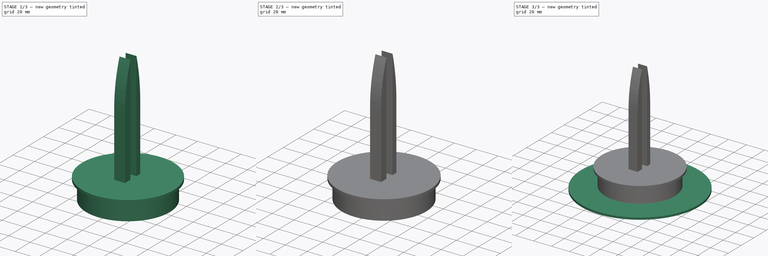
[diagram: build sequence overview — one tinted view per stage of 3, left to right]
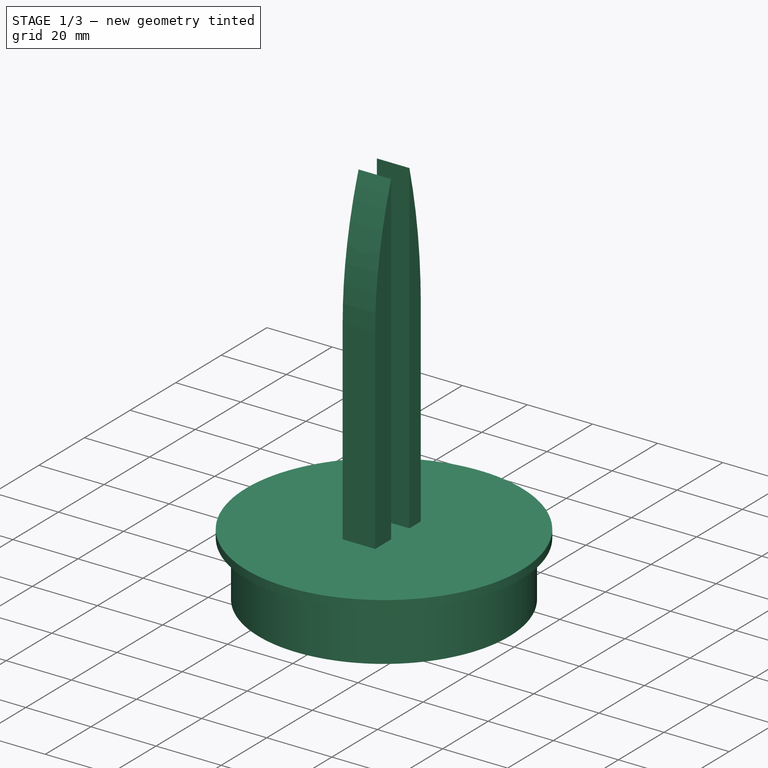
[diagram: stage 1 of 3 — iso view after this stage's code; geometry added in this stage tinted green]
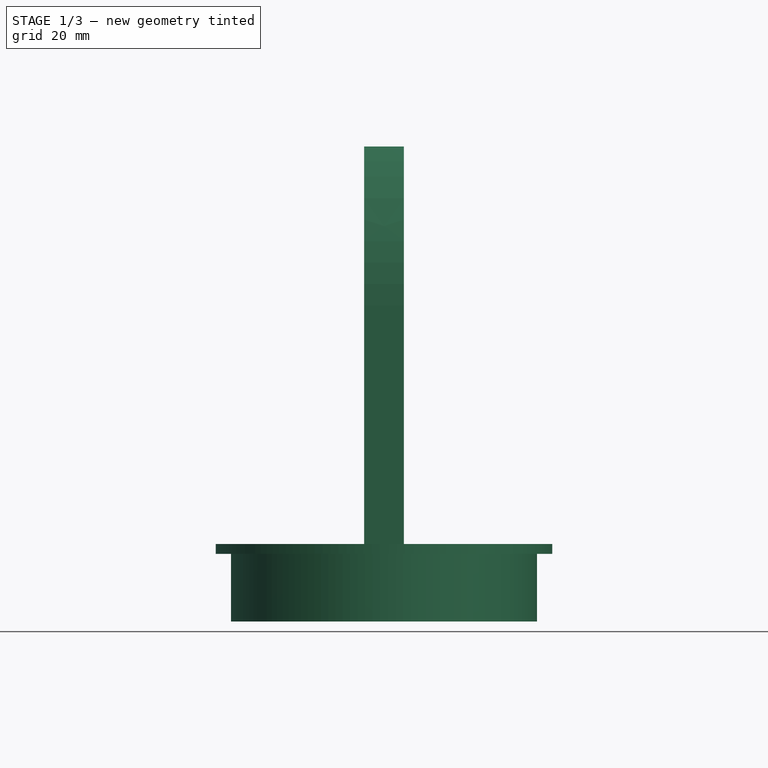
[diagram: stage 1 of 3 — front view after this stage's code; geometry added in this stage tinted green]
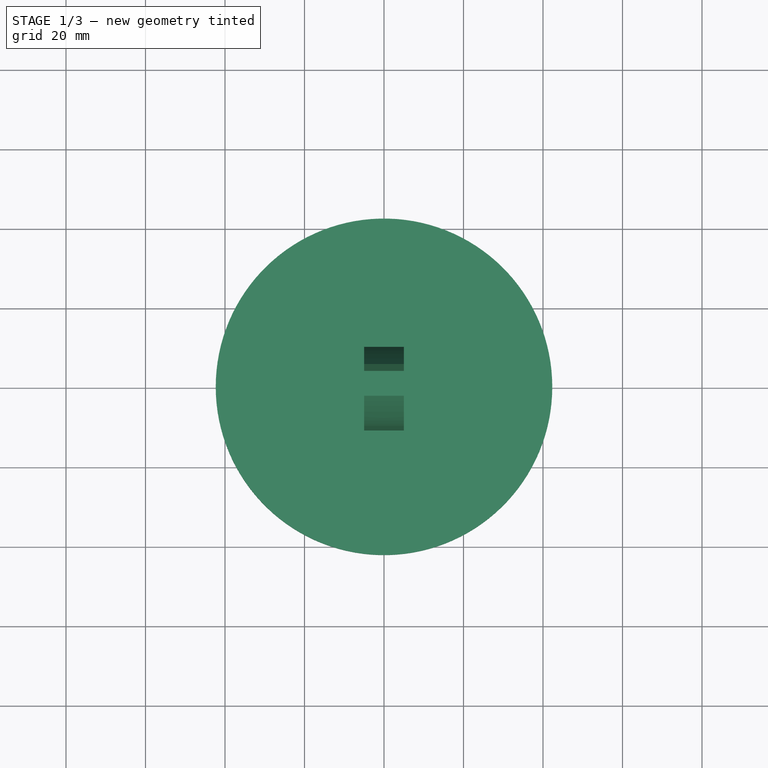
[diagram: stage 1 of 3 — top view after this stage's code; geometry added in this stage tinted green]
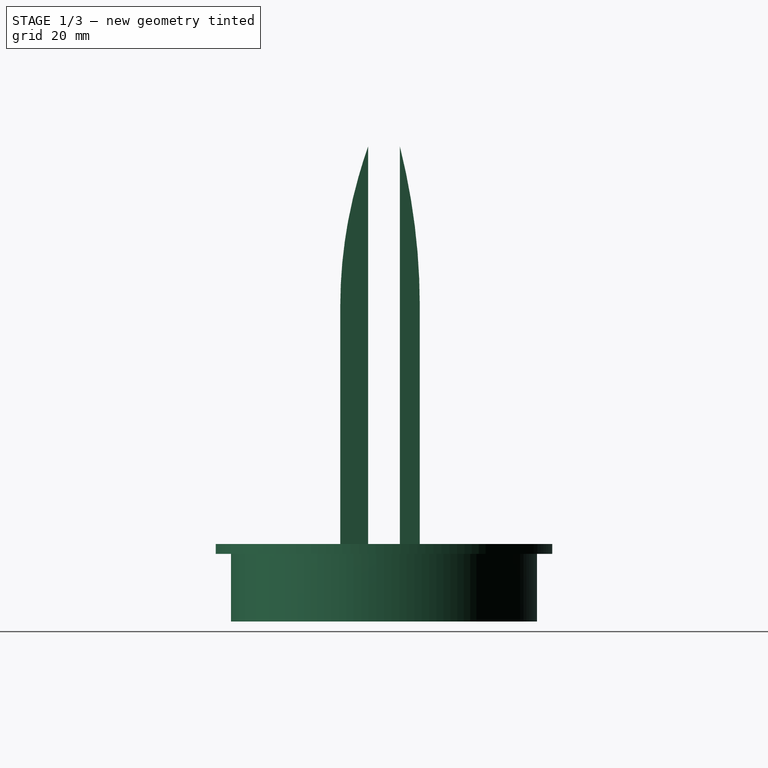
[diagram: stage 1 of 3 — right view after this stage's code; geometry added in this stage tinted green]
FCSTD DOCUMENT  (FreeCAD 1.1R20260414 (Git shallow))
Label: DЫ
License: All rights reserved
LicenseURL: https://en.wikipedia.org/wiki/All_rights_reserved
objects: Sketcher::SketchObject×5, PartDesign::Revolution×4, App::Point×3, PartDesign::Body×3, PartDesign::Chamfer×1, PartDesign::Pad×1
note: 31 computed .brp shape members not serialized (recipe doc carries the construction recipe); baked Part::Feature solids carry a one-line shape summary decoded from their .brp

FEATURE [PartDesign::Body] Body001  label="Подшипник"
  AllowCompound = false
  Group = -> [Sketch010,Revolution]
  Origin = -> Origin002
  Tip = -> Revolution
FEATURE [App::Point] Origin006  label="Origin001"
  Role = Origin
FEATURE [Sketcher::SketchObject] Sketch
  ArcFitTolerance = 1e-06
  AttachmentSupport = -> [Origin]
  ExternalTypes = [0]
  FullyConstrained = false
  MakeInternals = false
  MapMode = 5
  Placement = pos=(0,0,0) rot=(1,0,0;1.5708rad)
  _ExternalGeoVersion = 1
  sketch-geometry (8):
    g0: LineSegment StartX=36 StartY=17 StartZ=0 EndX=36 EndY=0 EndZ=0
    g1: LineSegment StartX=36 StartY=0 StartZ=0 EndX=38.5 EndY=0 EndZ=0
    g2: LineSegment StartX=38.5 StartY=0 StartZ=0 EndX=38.5 EndY=17 EndZ=0
    g3: LineSegment StartX=36 StartY=17 StartZ=0 EndX=0 EndY=17 EndZ=0
    g4: LineSegment StartX=0 StartY=17 StartZ=0 EndX=0 EndY=19.5 EndZ=0
    g5: LineSegment StartX=0 StartY=19.5 StartZ=0 EndX=42.3307 EndY=19.5 EndZ=0
    g6: LineSegment StartX=42.3307 StartY=19.5 StartZ=0 EndX=42.3307 EndY=17 EndZ=0
    g7: LineSegment StartX=42.3307 StartY=17 StartZ=0 EndX=38.5 EndY=17 EndZ=0
  constraints (23):
    c: Vertical(g0)
    c: Coincident(g0,g1)
    c: Coincident(g1,g2)
    c: Vertical(g2)
    c: Horizontal(g1)
    c: PointOnObject(g0,g-1)
    c: Distance(g-2,g0) = 36
    c: DistanceY(g2,g2) = 17
    c: DistanceX(g0,g2) = 2.5
    c: Coincident(g0,g3)
    c: Horizontal(g3)
    c: Coincident(g3,g4)
    c: Vertical(g4)
    c: Coincident(g4,g5)
    c: Horizontal(g5)
    c: Coincident(g5,g6)
    c: Vertical(g6)
    c: Coincident(g6,g7)
    c: Coincident(g7,g2)
    c: Horizontal(g7)
    c: DistanceY(g6,g6) = 2.5
    c: PointOnObject(g3,g-2)
    c: Horizontal(g2,g0)
FEATURE [PartDesign::Revolution] Revolution004
  Angle = 360
  Angle2 = 0
  Axis = (0,2e-16,1)
  Base = (0,0,0)
  FuseOrder = 0
  Profile = -> Sketch
  ReferenceAxis = -> Sketch [V_Axis]
  Refine = true
  Reversed = true
  Suppressed = false
  Type = 0
FEATURE [Sketcher::SketchObject] Sketch011
  ArcFitTolerance = 1e-06
  AttachmentSupport = -> [Origin]
  ExternalGeometry = -> [Revolution004]
  ExternalTypes = [0]
  FullyConstrained = false
  MakeInternals = false
  MapMode = 5
  Placement = pos=(0,0,0) rot=(0.57735,0.57735,0.57735;2.0944rad)
  _ExternalGeoVersion = 1
  sketch-geometry (24):
    g0: LineSegment StartX=-4 StartY=119.5 StartZ=0 EndX=-4 EndY=19.5 EndZ=0
    g1: LineSegment StartX=4 StartY=119.5 StartZ=0 EndX=4 EndY=19.5 EndZ=0
    g2: LineSegment StartX=-11 StartY=19.5 StartZ=0 EndX=-11 EndY=79.5 EndZ=0
    g3: LineSegment StartX=9 StartY=19.5 StartZ=0 EndX=9 EndY=79.5 EndZ=0
    g4: LineSegment StartX=-4 StartY=19.5 StartZ=0 EndX=-11 EndY=19.5 EndZ=0
    g5: LineSegment StartX=4 StartY=19.5 StartZ=0 EndX=9 EndY=19.5 EndZ=0
    g6: Circle [constr] CenterX=-11 CenterY=79.5 CenterZ=0 NormalX=0 NormalY=0 NormalZ=1 AngleXU=0 Radius=1
    g7: Circle [constr] CenterX=-11 CenterY=99.5 CenterZ=0 NormalX=0 NormalY=0 NormalZ=1 AngleXU=0 Radius=1
    g8: Circle [constr] CenterX=-4 CenterY=119.5 CenterZ=0 NormalX=0 NormalY=0 NormalZ=1 AngleXU=0 Radius=1
    g9: BSplineCurve PolesCount=3 KnotsCount=2 Degree=2 IsPeriodic=0
    g10: GeomPoint [constr] X=-11 Y=79.5 Z=0
    g11: GeomPoint [constr] X=-4 Y=119.5 Z=0
    g12: Circle [constr] CenterX=4 CenterY=119.5 CenterZ=0 NormalX=0 NormalY=0 NormalZ=1 AngleXU=0 Radius=1
    g13: Circle [constr] CenterX=9 CenterY=99.5 CenterZ=0 NormalX=0 NormalY=0 NormalZ=1 AngleXU=0 Radius=1
    g14: Circle [constr] CenterX=9 CenterY=79.5 CenterZ=0 NormalX=0 NormalY=0 NormalZ=1 AngleXU=0 Radius=1
    g15: BSplineCurve PolesCount=3 KnotsCount=2 Degree=2 IsPeriodic=0
    g16: GeomPoint [constr] X=4 Y=119.5 Z=0
    g17: GeomPoint [constr] X=9 Y=79.5 Z=0
    g18: LineSegment [constr] StartX=-4 StartY=119.5 StartZ=0 EndX=-11 EndY=119.5 EndZ=0
    g19: LineSegment [constr] StartX=-11 StartY=119.5 StartZ=0 EndX=-11 EndY=99.5 EndZ=0
    g20: LineSegment [constr] StartX=-11 StartY=99.5 StartZ=0 EndX=-11 EndY=79.5 EndZ=0
    g21: LineSegment [constr] StartX=9 StartY=79.5 StartZ=0 EndX=9 EndY=99.5 EndZ=0
    g22: LineSegment [constr] StartX=9 StartY=99.5 StartZ=0 EndX=9 EndY=119.5 EndZ=0
    g23: LineSegment [constr] StartX=9 StartY=119.5 StartZ=0 EndX=4 EndY=119.5 EndZ=0
  constraints (56):
    c: DistanceY(g1,g1) = 100
    c: PointOnObject(g1,g-3)
    c: Horizontal(g1,g0)
    c: Vertical(g2)
    c: PointOnObject(g3,g-3)
    c: Vertical(g3)
    c: Horizontal(g2,g3)
    c: Coincident(g4,g0)
    c: Coincident(g4,g2)
    c: Coincident(g5,g1)
    c: Coincident(g5,g3)
    c: Symmetric(g1,g0,g-2)
    c: Distance(g4,g4) = 7
    c: Vertical(g1)
    c: Vertical(g0)
    c: DistanceX(g5,g5) = 5
    c: Weight(g6) = 1
    c: Equal(g6,g7)
    c: Equal(g6,g8)
    c: InternalAlignment(g6,g9)
    c: InternalAlignment(g7,g9)
    c: InternalAlignment(g8,g9)
    c: InternalAlignment(g10,g9)
    c: InternalAlignment(g11,g9)
    c: Coincident(g6,g2)
    c: Coincident(g8,g0)
    c: Weight(g12) = 1
    c: Equal(g12,g13)
    c: Equal(g12,g14)
    c: InternalAlignment(g12,g15)
    c: InternalAlignment(g13,g15)
    c: InternalAlignment(g14,g15)
    c: InternalAlignment(g16,g15)
    c: InternalAlignment(g17,g15)
    c: Coincident(g12,g1)
    c: Coincident(g14,g3)
    c: Vertical(g9,g7)
    c: Vertical(g13,g15)
    c: Coincident(g18,g9)
    c: Horizontal(g18)
    c: Coincident(g18,g19)
    c: Coincident(g19,g20)
    c: Coincident(g20,g9)
    c: Coincident(g21,g15)
    c: Coincident(g21,g22)
    c: Coincident(g22,g23)
    c: Coincident(g23,g15)
    c: Vertical(g19)
    c: Vertical(g22)
    c: Horizontal(g23)
    c: Coincident(g7,g19)
    c: Coincident(g13,g21)
    c: Distance(g0,g1) = 8
    c: DistanceY(g2,g0) = 40
    c: Equal(g19,g20)
    c: Equal(g22,g21)
FEATURE [PartDesign::Pad] Pad
  BaseFeature = -> Revolution004
  Direction = (1,0,0)
  Length = 10
  Length2 = 10
  Profile = -> Sketch011
  ReferenceAxis = -> Sketch011 [N_Axis]
  Refine = true
  SideType = 2
  Suppressed = false
  Type = 0
  Type2 = 0
FEATURE [PartDesign::Body] Body  label="Губы"
  AllowCompound = true
  Group = -> [Sketch,Revolution004,Sketch011,Pad]
  Origin = -> Origin
  Tip = -> Pad
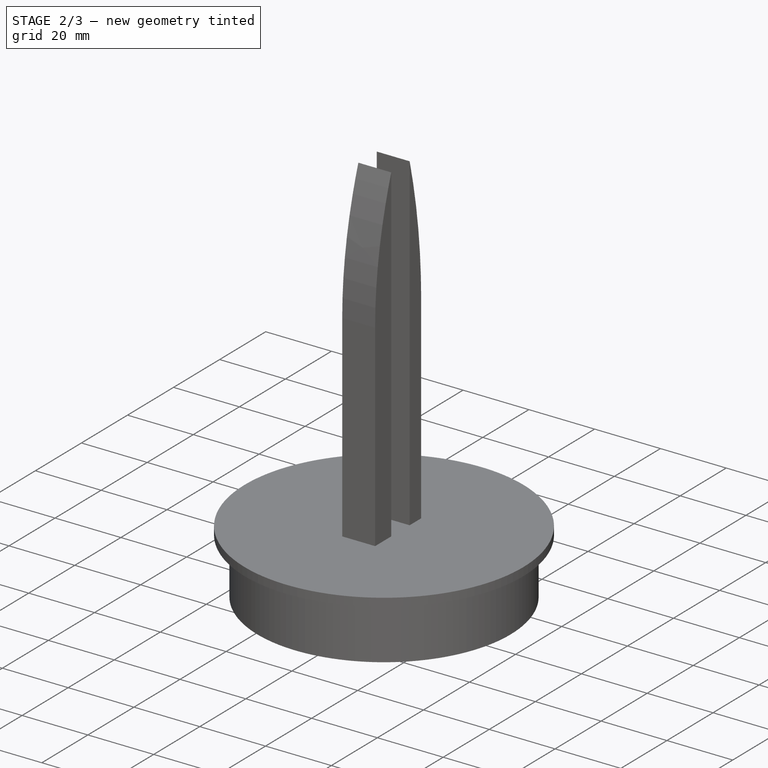
[diagram: stage 2 of 3 — iso view after this stage's code; geometry added in this stage tinted green]
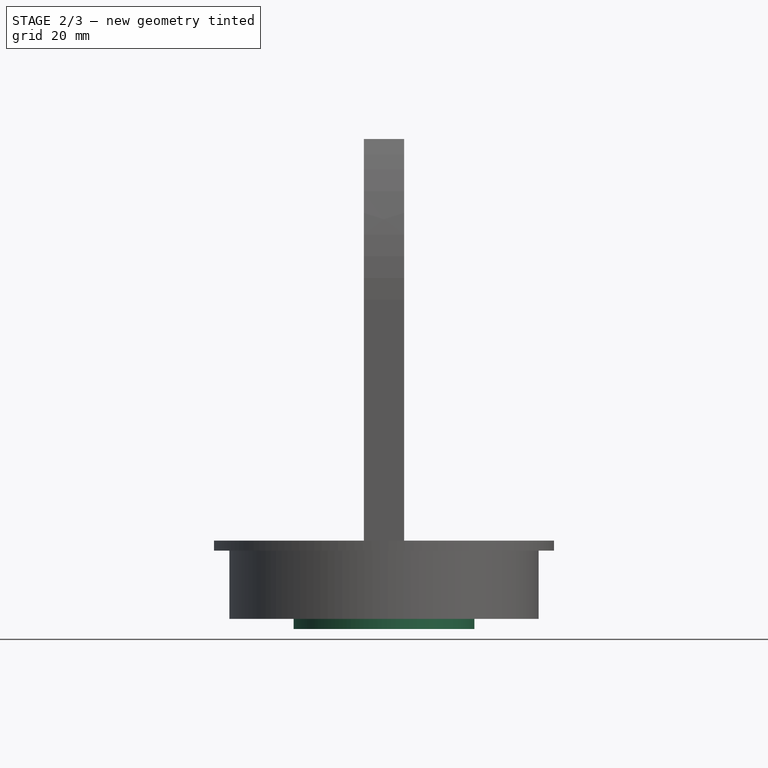
[diagram: stage 2 of 3 — front view after this stage's code; geometry added in this stage tinted green]
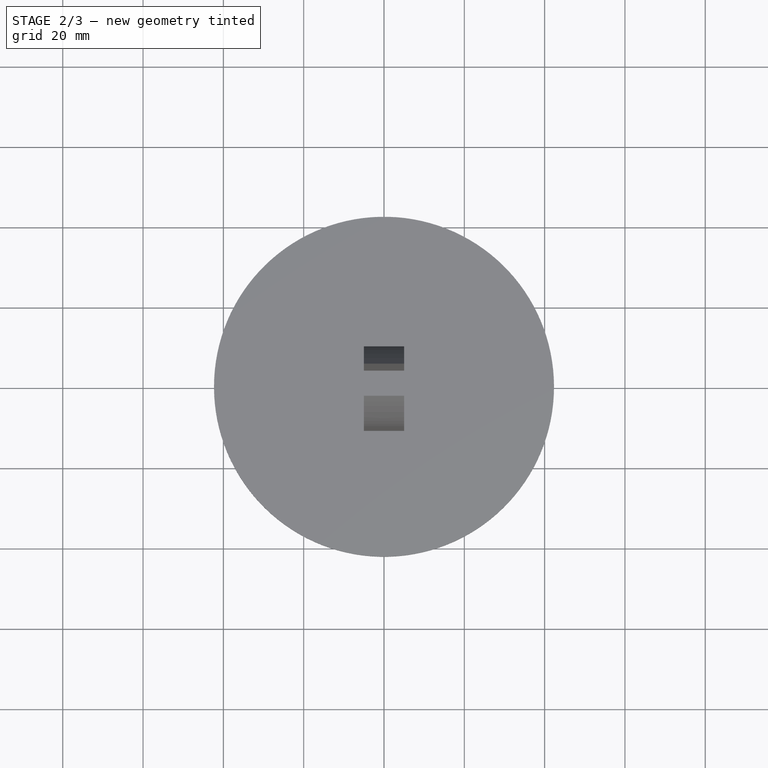
[diagram: stage 2 of 3 — top view after this stage's code; geometry added in this stage tinted green]
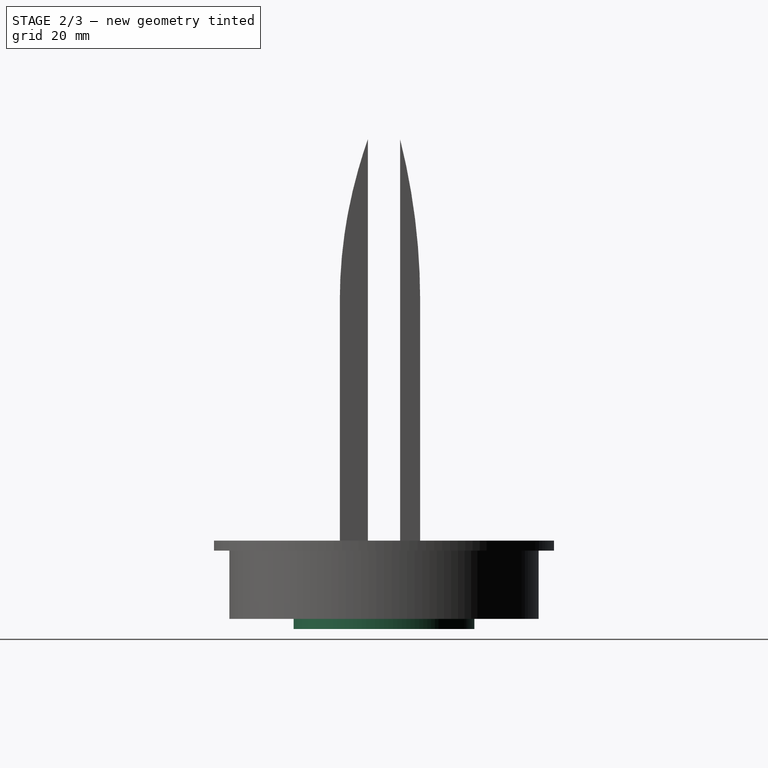
[diagram: stage 2 of 3 — right view after this stage's code; geometry added in this stage tinted green]
FEATURE [App::Point] Origin003  label="Начало координат003"
  Role = Origin
FEATURE [App::Point] Origin005  label="Начало координат004"
  Role = Origin
FEATURE [Sketcher::SketchObject] Sketch008
  ArcFitTolerance = 1e-06
  AttachmentSupport = -> [Origin004]
  ExternalTypes = [0]
  FullyConstrained = true
  MakeInternals = false
  MapMode = 5
  Placement = pos=(0,0,0) rot=(1,0,0;1.5708rad)
  _ExternalGeoVersion = 1
  sketch-geometry (8):
    g0: LineSegment StartX=0 StartY=0 StartZ=0 EndX=-14.5 EndY=0 EndZ=0
    g1: LineSegment StartX=-14.5 StartY=0 StartZ=0 EndX=-14.5 EndY=16 EndZ=0
    g2: LineSegment StartX=-14.5 StartY=16 StartZ=0 EndX=-17.5 EndY=16 EndZ=0
    g3: LineSegment StartX=-17.5 StartY=16 StartZ=0 EndX=-17.5 EndY=0 EndZ=0
    g4: LineSegment StartX=-17.5 StartY=0 StartZ=0 EndX=-22.5 EndY=0 EndZ=0
    g5: LineSegment StartX=-22.5 StartY=0 StartZ=0 EndX=-22.5 EndY=-2.5 EndZ=0
    g6: LineSegment StartX=-22.5 StartY=-2.5 StartZ=0 EndX=0 EndY=-2.5 EndZ=0
    g7: LineSegment StartX=0 StartY=-2.5 StartZ=0 EndX=0 EndY=0 EndZ=0
  constraints (23):
    c: Coincident(g-1,g0)
    c: Horizontal(g0)
    c: Coincident(g0,g1)
    c: Vertical(g1)
    c: Coincident(g1,g2)
    c: Horizontal(g2)
    c: Coincident(g2,g3)
    c: Vertical(g3)
    c: Coincident(g3,g4)
    c: Horizontal(g4)
    c: Coincident(g4,g5)
    c: Vertical(g5)
    c: Coincident(g5,g6)
    c: PointOnObject(g6,g-2)
    c: Horizontal(g6)
    c: Coincident(g6,g7)
    c: Coincident(g7,g0)
    c: DistanceY(g7,g7) = 2.5
    c: Horizontal(g3,g0)
    c: DistanceX(g2,g2) = 3
    c: DistanceX(g3,g0) = 17.5
    c: DistanceY(g1,g1) = 16
    c: DistanceX(g4,g4) = 5
FEATURE [PartDesign::Revolution] Revolution002
  Angle = 360
  Angle2 = 0
  Axis = (0,2e-16,1)
  Base = (0,0,0)
  FuseOrder = 0
  Profile = -> Sketch008
  ReferenceAxis = -> Sketch008 [V_Axis]
  Refine = true
  Suppressed = false
  Type = 0
FEATURE [PartDesign::Body] Body002  label="Подставка"
  AllowCompound = true
  Group = -> [Sketch008,Revolution002,Chamfer001,Sketch009,Revolution003]
  Origin = -> Origin004
  Tip = -> Revolution003
FEATURE [Sketcher::SketchObject] Sketch010
  ArcFitTolerance = 1e-06
  AttachmentSupport = -> [Origin002]
  ExternalTypes = [0]
  FullyConstrained = false
  MakeInternals = false
  MapMode = 5
  Placement = pos=(0,0,0) rot=(1,0,0;1.5708rad)
  _ExternalGeoVersion = 1
  expr: .Constraints.vnesh_podshipnik = 72 / 2
  expr: Constraints[30] = 35 / 2
  sketch-geometry (13):
    g0: LineSegment StartX=17.5 StartY=17 StartZ=0 EndX=17.5 EndY=0 EndZ=0
    g1: LineSegment StartX=17.5 StartY=0 StartZ=0 EndX=22.5 EndY=0 EndZ=0
    g2: LineSegment StartX=22.5 StartY=0 StartZ=0 EndX=23.25 EndY=1 EndZ=0
    g3: LineSegment StartX=23.25 StartY=1 StartZ=0 EndX=30.25 EndY=1 EndZ=0
    g4: LineSegment StartX=30.25 StartY=1 StartZ=0 EndX=31 EndY=0 EndZ=0
    g5: LineSegment StartX=31 StartY=0 StartZ=0 EndX=36 EndY=0 EndZ=0
    g6: LineSegment StartX=36 StartY=0 StartZ=0 EndX=36 EndY=17 EndZ=0
    g7: LineSegment StartX=36 StartY=17 StartZ=0 EndX=32 EndY=17 EndZ=0
    g8: LineSegment StartX=32 StartY=17 StartZ=0 EndX=31.25 EndY=16 EndZ=0
    g9: LineSegment StartX=31.25 StartY=16 StartZ=0 EndX=23.25 EndY=16 EndZ=0
    g10: LineSegment StartX=23.25 StartY=16 StartZ=0 EndX=22.5 EndY=17 EndZ=0
    g11: LineSegment StartX=22.5 StartY=17 StartZ=0 EndX=17.5 EndY=17 EndZ=0
    g12: LineSegment [constr] StartX=9.02399 StartY=8.5 StartZ=0 EndX=44.0015 EndY=8.5 EndZ=0
  constraints (37):
    c: Coincident(g0,g1)
    c: Coincident(g1,g2)
    c: Coincident(g2,g3)
    c: Coincident(g3,g4)
    c: Coincident(g4,g5)
    c: Coincident(g5,g6)
    c: Vertical(g6)
    c: Coincident(g6,g7)
    c: Coincident(g7,g8)
    c: Coincident(g8,g9)
    c: Coincident(g9,g10)
    c: Coincident(g10,g11)
    c: Coincident(g11,g0)
    c: Horizontal(g11)
    c: Horizontal(g12)
    c: Horizontal(g3)
    c: Vertical(g0)
    c: Horizontal(g1)
    c: Horizontal(g7)
    c: Horizontal(g9)
    c: Horizontal(g5)
    c: Equal(g4,g8)
    c: Equal(g8,g10)
    c: Equal(g10,g2)
    c: Symmetric(g2,g9,g12)
    c: Equal(g1,g5)
    c: Horizontal(g10,g7)
    c: Horizontal(g4,g1)
    c: PointOnObject(g0,g-1)
    c: Distance(g-1,g6) = 36  'vnesh_podshipnik'
    c: Distance(g-1,g0) = 17.5
    c: DistanceY(g6,g6) = 17
    c: Distance(g11,g9) = 1
    c: DistanceX(g7,g7) = 4
    c: DistanceX(g11,g11) = 5
    c: Equal(g1,g11)
    c: DistanceX(g9,g9) = 8
FEATURE [PartDesign::Revolution] Revolution
  Angle = 360
  Angle2 = 0
  Axis = (0,2e-16,1)
  Base = (0,0,0)
  FuseOrder = 0
  Profile = -> Sketch010
  ReferenceAxis = -> Sketch010 [V_Axis]
  Refine = true
  Reversed = true
  Suppressed = false
  Type = 0
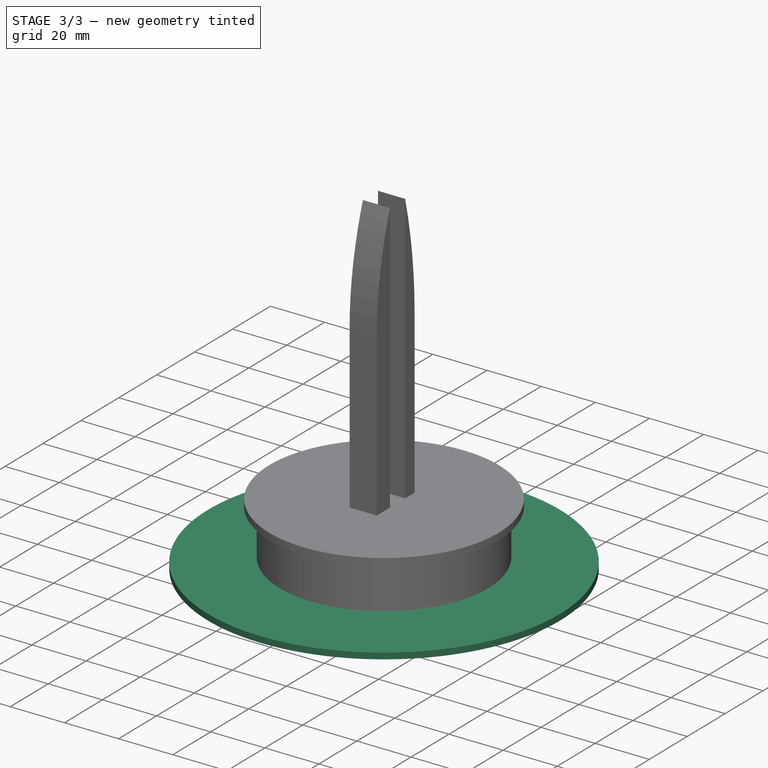
[diagram: stage 3 of 3 — iso view after this stage's code; geometry added in this stage tinted green]
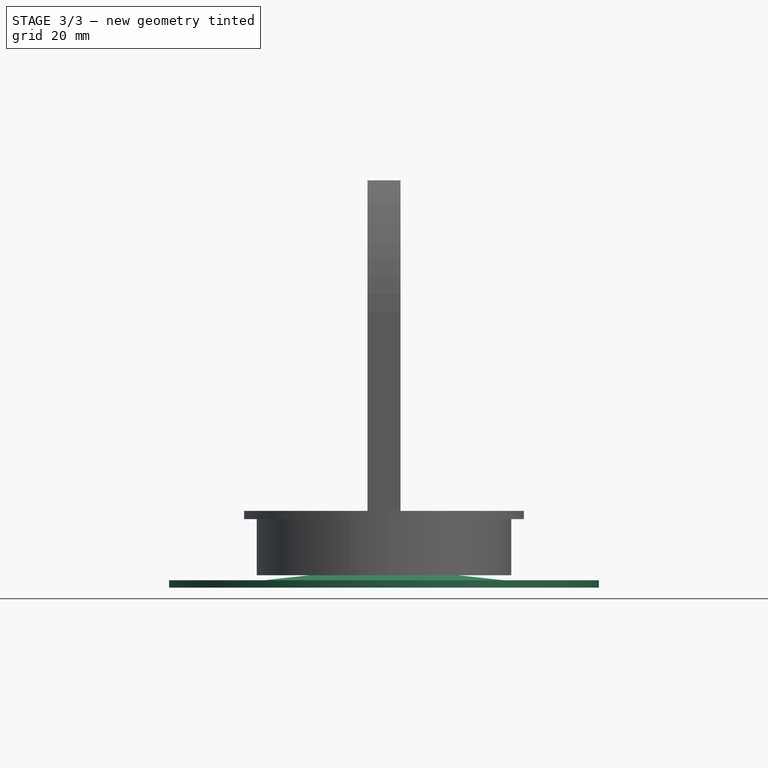
[diagram: stage 3 of 3 — front view after this stage's code; geometry added in this stage tinted green]
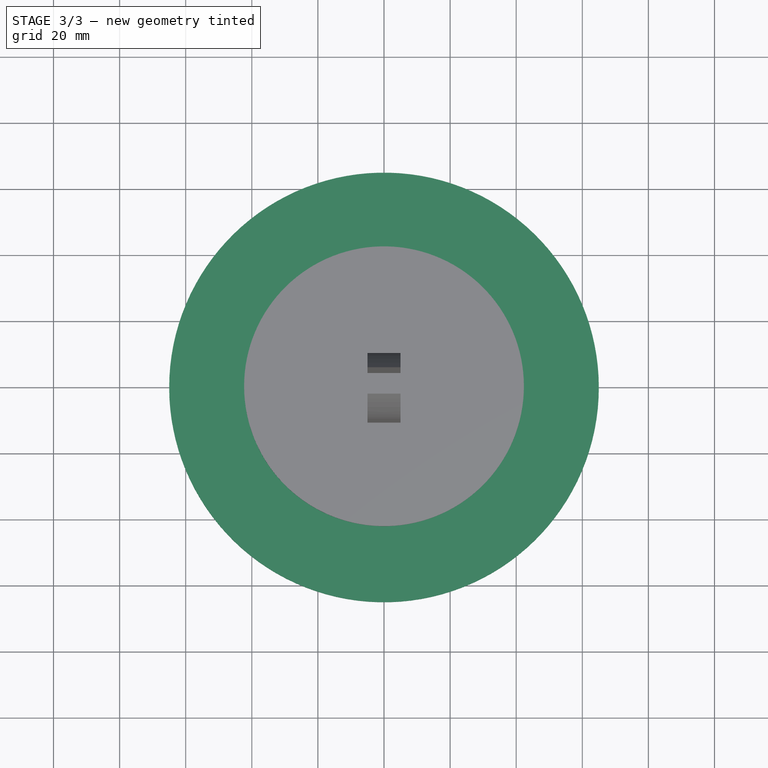
[diagram: stage 3 of 3 — top view after this stage's code; geometry added in this stage tinted green]
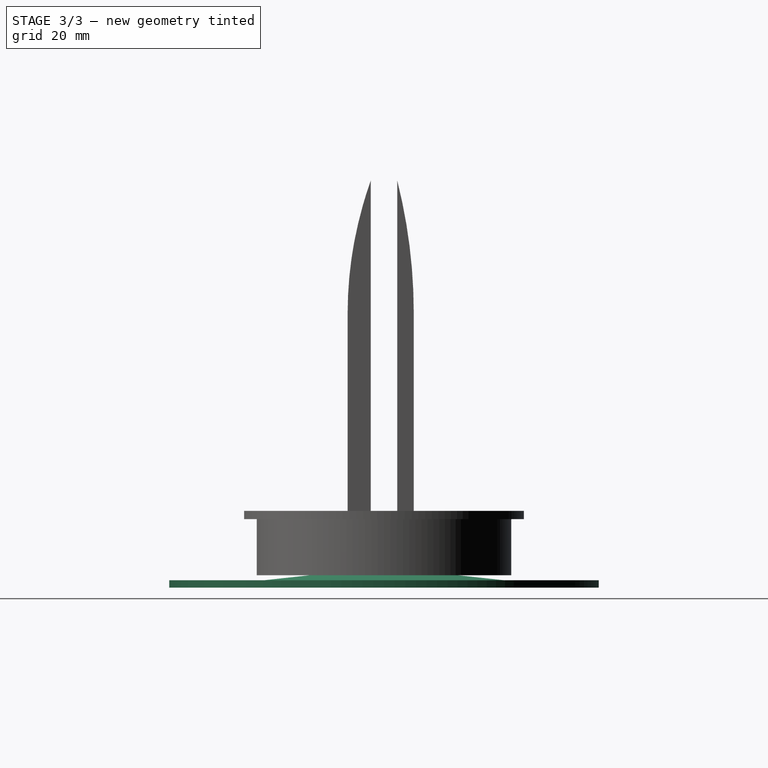
[diagram: stage 3 of 3 — right view after this stage's code; geometry added in this stage tinted green]
FEATURE [PartDesign::Chamfer] Chamfer001
  Angle = 45
  Base = -> Revolution002 [Edge1]
  BaseFeature = -> Revolution002
  ChamferType = 0
  FlipDirection = false
  Refine = true
  Size = 1
  Size2 = 1
  SupportTransform = false
  Suppressed = false
  UseAllEdges = false
FEATURE [Sketcher::SketchObject] Sketch009
  ArcFitTolerance = 1e-06
  AttachmentSupport = -> [Origin004]
  ExternalGeometry = -> [Chamfer001]
  ExternalTypes = [0,0,0]
  FullyConstrained = false
  MakeInternals = false
  MapMode = 5
  Placement = pos=(0,0,0) rot=(1,0,0;1.5708rad)
  _ExternalGeoVersion = 1
  sketch-geometry (7):
    g0: LineSegment StartX=-22.5 StartY=0 StartZ=0 EndX=-36.2047 EndY=-1.5 EndZ=0
    g1: LineSegment StartX=-36.2047 StartY=-1.5 StartZ=0 EndX=-65 EndY=-1.5 EndZ=0
    g2: LineSegment StartX=-65 StartY=-1.5 StartZ=0 EndX=-65 EndY=-3.75 EndZ=0
    g3: LineSegment StartX=-65 StartY=-3.75 StartZ=0 EndX=0 EndY=-3.75 EndZ=0
    g4: LineSegment StartX=0 StartY=-3.75 StartZ=0 EndX=0 EndY=-2.5 EndZ=0
    g5: LineSegment StartX=0 StartY=-2.5 StartZ=0 EndX=-22.5 EndY=-2.5 EndZ=0
    g6: LineSegment StartX=-22.5 StartY=-2.5 StartZ=0 EndX=-22.5 EndY=0 EndZ=0
  constraints (18):
    c: Coincident(g-5,g0)
    c: Coincident(g0,g1)
    c: Horizontal(g1)
    c: Coincident(g1,g2)
    c: Vertical(g2)
    c: Coincident(g2,g3)
    c: PointOnObject(g3,g-2)
    c: Horizontal(g3)
    c: DistanceX(g3,g3) = 65
    c: DistanceY(g2,g2) = 2.25
    c: Coincident(g3,g4)
    c: Coincident(g4,g5)
    c: Horizontal(g5)
    c: Coincident(g5,g6)
    c: Coincident(g6,g0)
    c: Coincident(g-4,g5)
    c: PointOnObject(g4,g-2)
    c: DistanceY(g0,g0) = 1.5
FEATURE [PartDesign::Revolution] Revolution003
  Angle = 360
  Angle2 = 0
  Axis = (0,2e-16,1)
  Base = (0,0,0)
  BaseFeature = -> Chamfer001
  FuseOrder = 0
  Profile = -> Sketch009
  ReferenceAxis = -> Sketch009 [V_Axis]
  Refine = true
  Suppressed = false
  Type = 0
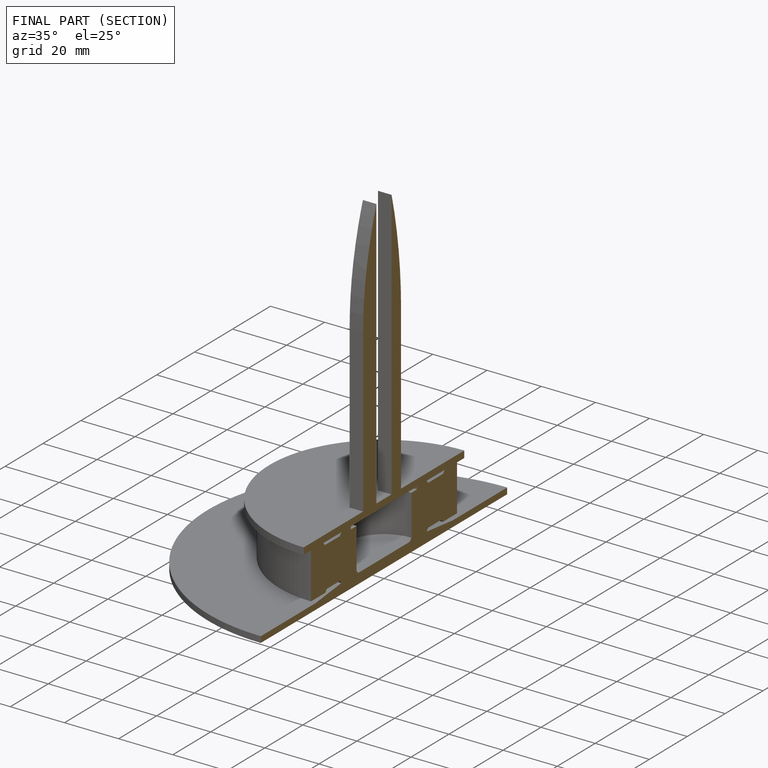
[diagram: finished part — half-section view (interior)]
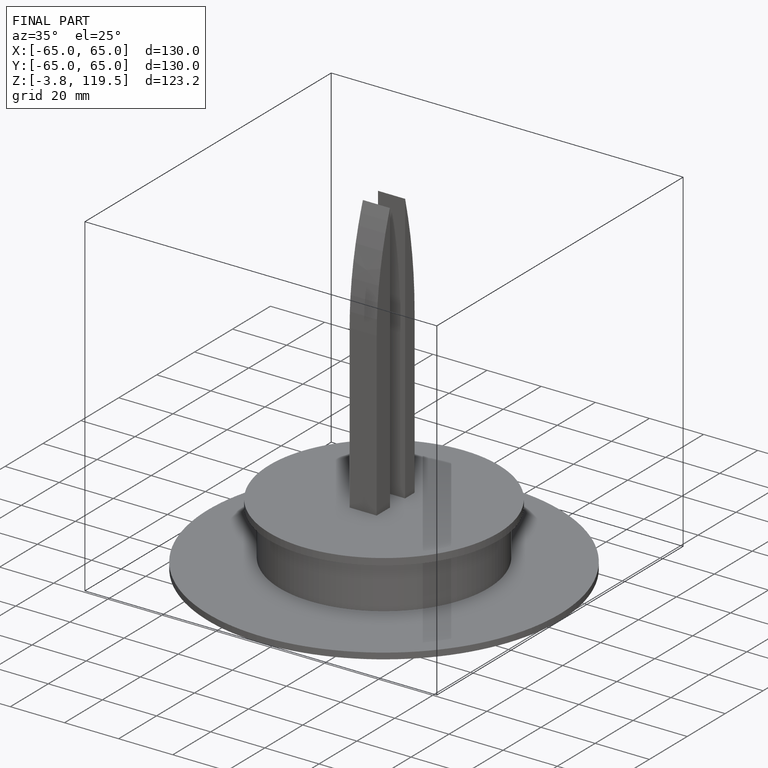
[diagram: finished part — iso view with bounding-box wireframe]
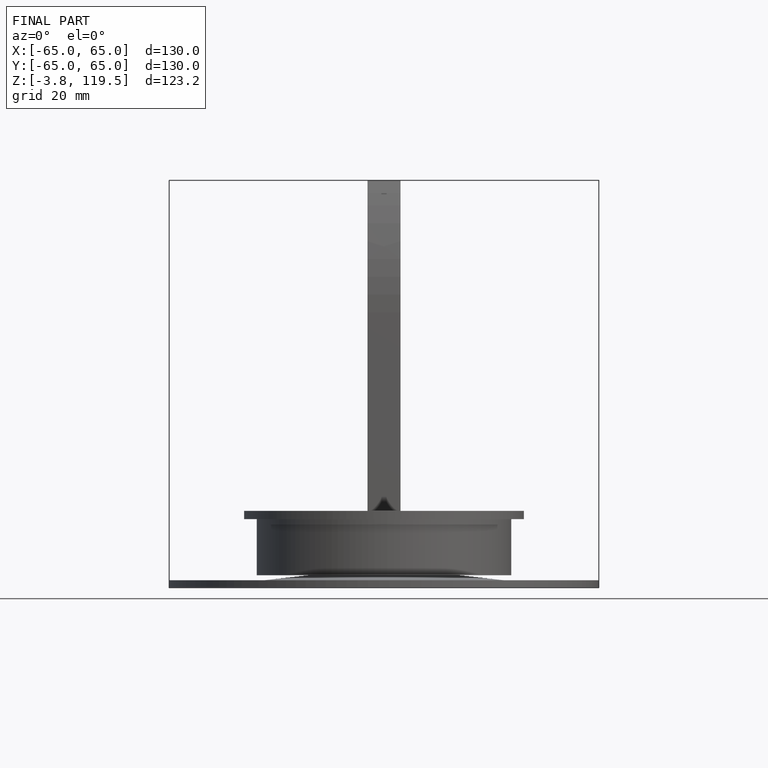
[diagram: finished part — front view with bounding-box wireframe]
